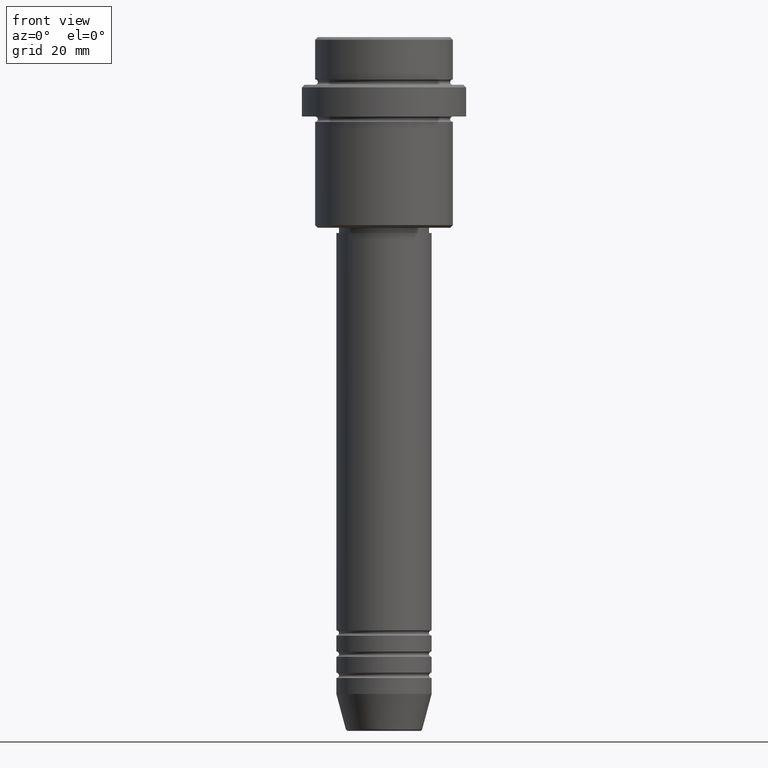
[diagram: clean part render]
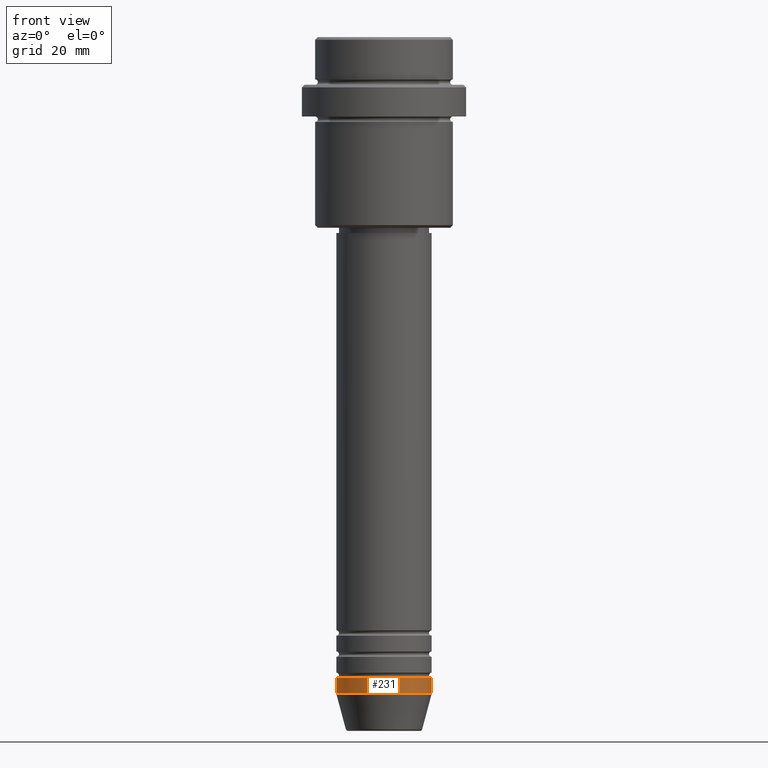
[diagram: same view with one face highlighted and labeled with its STEP entity id]
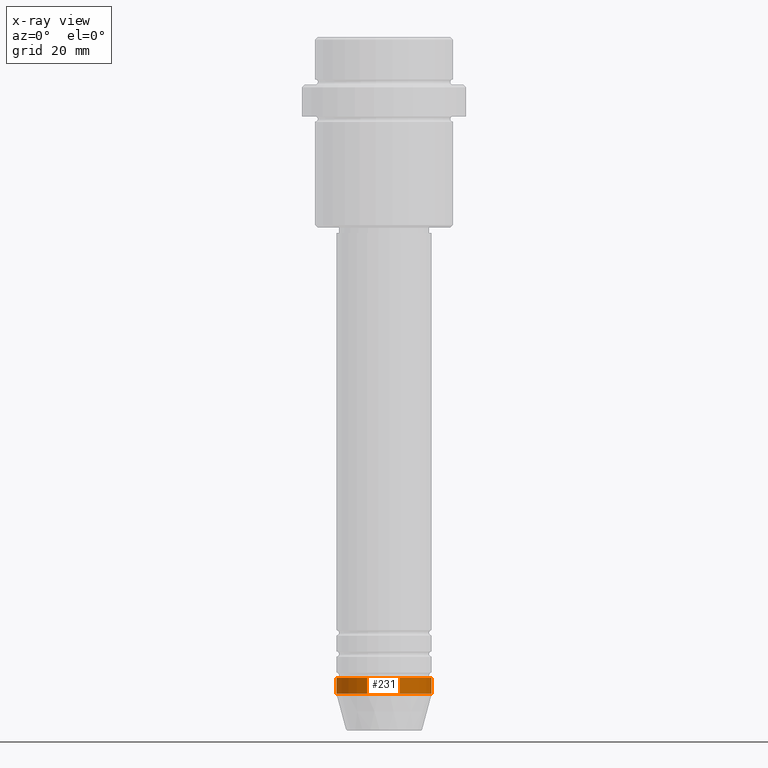
[diagram: x-ray of the same camera — body ghosted, the highlighted face saturated]
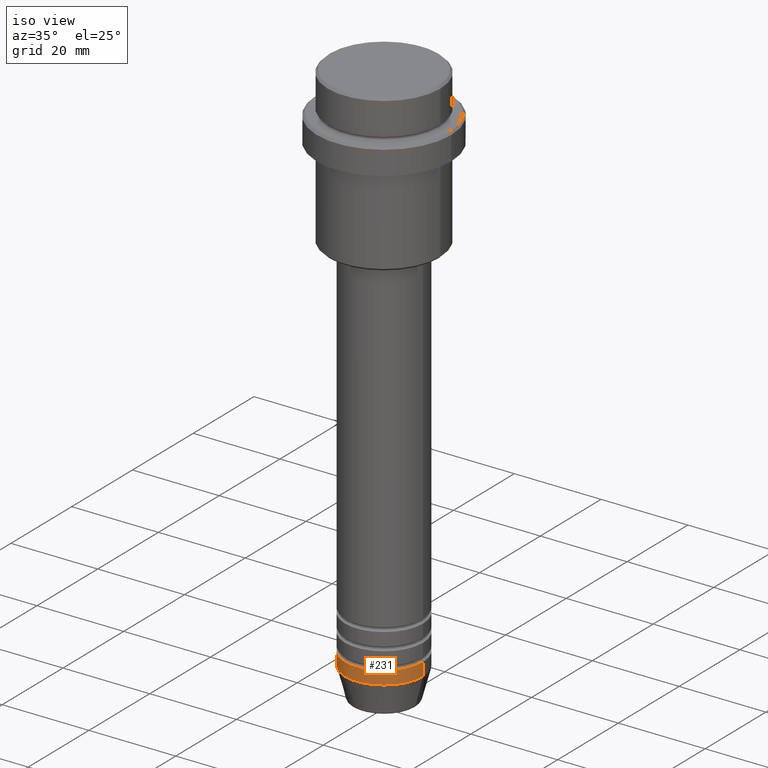
[diagram: same view with one face highlighted and labeled with its STEP entity id]
A machine part, front view. The second image highlights one B-rep face of the part: STEP entity #231.
The next image is the same camera in x-ray: the body ghosted, the highlighted face saturated — about 0% of this face is hidden behind the body in this view.
A second angle (iso view) of the same face is appended — the face is thin or edge-on in the first view.
In plain terms, the highlighted cylindrical surface (partial cylindrical patch) has radius 9 mm, axis along (-0, -0, 1).
Its self-contained STEP definition (entity closure, byte-faithful):
#135 = VECTOR ( 'NONE', #410, 1000.000000000000000 ) ;
#147 = EDGE_LOOP ( 'NONE', ( #541, #1209, #204, #1196 ) ) ;
#160 = CARTESIAN_POINT ( 'NONE',  ( -9.000000000000000000, 1.102182119232617714E-15, 0.000000000000000000 ) ) ;
#186 = VECTOR ( 'NONE', #1252, 1000.000000000000000 ) ;
#204 = ORIENTED_EDGE ( 'NONE', *, *, #1187, .T. ) ;
#231 = ADVANCED_FACE ( 'NONE', ( #1275 ), #1364, .T. ) ;
#299 = LINE ( 'NONE', #1083, #135 ) ;
#385 = VERTEX_POINT ( 'NONE', #879 ) ;
#410 = DIRECTION ( 'NONE',  ( -0.000000000000000000, -0.000000000000000000, 1.000000000000000000 ) ) ;
#414 = DIRECTION ( 'NONE',  ( -0.000000000000000000, -0.000000000000000000, 1.000000000000000000 ) ) ;
#466 = CARTESIAN_POINT ( 'NONE',  ( 0.000000000000000000, 0.000000000000000000, -124.0000000000000000 ) ) ;
#471 = EDGE_CURVE ( 'NONE', #385, #1302, #1162, .T. ) ;
#517 = LINE ( 'NONE', #160, #186 ) ;
#541 = ORIENTED_EDGE ( 'NONE', *, *, #1311, .F. ) ;
#575 = DIRECTION ( 'NONE',  ( -0.000000000000000000, -0.000000000000000000, 1.000000000000000000 ) ) ;
#632 = DIRECTION ( 'NONE',  ( 1.000000000000000000, 0.000000000000000000, 0.000000000000000000 ) ) ;
#756 = AXIS2_PLACEMENT_3D ( 'NONE', #1064, #414, #632 ) ;
#789 = DIRECTION ( 'NONE',  ( 1.000000000000000000, 0.000000000000000000, 0.000000000000000000 ) ) ;
#879 = CARTESIAN_POINT ( 'NONE',  ( -9.000000000000000000, 1.102182119232617714E-15, -124.0000000000000000 ) ) ;
#926 = VERTEX_POINT ( 'NONE', #1332 ) ;
#931 = CARTESIAN_POINT ( 'NONE',  ( 9.000000000000000000, 0.000000000000000000, -124.0000000000000000 ) ) ;
#964 = EDGE_CURVE ( 'NONE', #1338, #926, #1303, .T. ) ;
#1017 = DIRECTION ( 'NONE',  ( 1.000000000000000000, 0.000000000000000000, 0.000000000000000000 ) ) ;
#1050 = CARTESIAN_POINT ( 'NONE',  ( -9.000000000000000000, 1.102182119232617714E-15, -121.0000000000000000 ) ) ;
#1064 = CARTESIAN_POINT ( 'NONE',  ( 0.000000000000000000, 0.000000000000000000, 0.000000000000000000 ) ) ;
#1083 = CARTESIAN_POINT ( 'NONE',  ( 9.000000000000000000, 0.000000000000000000, 0.000000000000000000 ) ) ;
#1162 = CIRCLE ( 'NONE', #1411, 9.000000000000000000 ) ;
#1166 = AXIS2_PLACEMENT_3D ( 'NONE', #1223, #1241, #1017 ) ;
#1187 = EDGE_CURVE ( 'NONE', #1302, #926, #299, .T. ) ;
#1196 = ORIENTED_EDGE ( 'NONE', *, *, #964, .F. ) ;
#1209 = ORIENTED_EDGE ( 'NONE', *, *, #471, .T. ) ;
#1223 = CARTESIAN_POINT ( 'NONE',  ( 0.000000000000000000, 0.000000000000000000, -121.0000000000000000 ) ) ;
#1241 = DIRECTION ( 'NONE',  ( -0.000000000000000000, -0.000000000000000000, 1.000000000000000000 ) ) ;
#1252 = DIRECTION ( 'NONE',  ( -0.000000000000000000, -0.000000000000000000, 1.000000000000000000 ) ) ;
#1275 = FACE_OUTER_BOUND ( 'NONE', #147, .T. ) ;
#1302 = VERTEX_POINT ( 'NONE', #931 ) ;
#1303 = CIRCLE ( 'NONE', #1166, 9.000000000000000000 ) ;
#1311 = EDGE_CURVE ( 'NONE', #385, #1338, #517, .T. ) ;
#1332 = CARTESIAN_POINT ( 'NONE',  ( 9.000000000000000000, 0.000000000000000000, -121.0000000000000000 ) ) ;
#1338 = VERTEX_POINT ( 'NONE', #1050 ) ;
#1364 = CYLINDRICAL_SURFACE ( 'NONE', #756, 9.000000000000000000 ) ;
#1411 = AXIS2_PLACEMENT_3D ( 'NONE', #466, #575, #789 ) ;